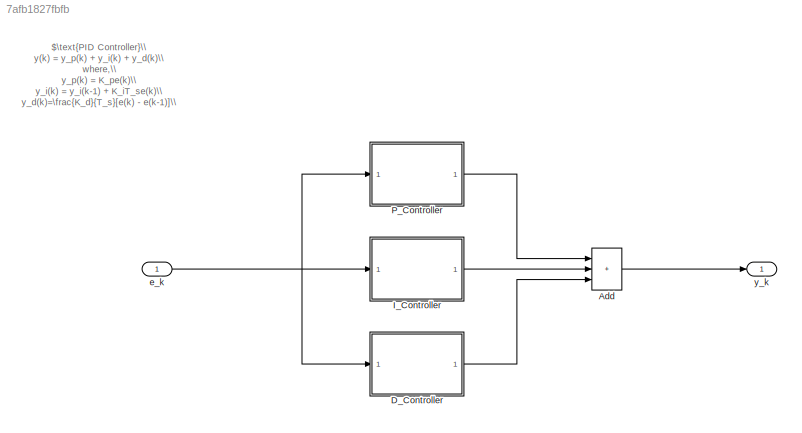
MODEL slx_7afb1827fbfb
KIND model
CONFIG AbsTol = auto
CONFIG EnableMultiTasking = off
CONFIG FixedStep = Ts
CONFIG MaxStep = auto
CONFIG MinStep = auto
CONFIG PostLoadFcn = %load('Parameters.mat')
CONFIG PreLoadFcn = %load('Parameters.mat')
CONFIG RelTol = 1e-3
CONFIG SampleTimeConstraint = Unconstrained
CONFIG SolverName = FixedStepDiscrete
CONFIG StartTime = 0.0
CONFIG StopTime = 10.0
BLOCK [Sum] Add
  IconShape = rectangular
  Inputs = +++
  Ports = [3, 1]
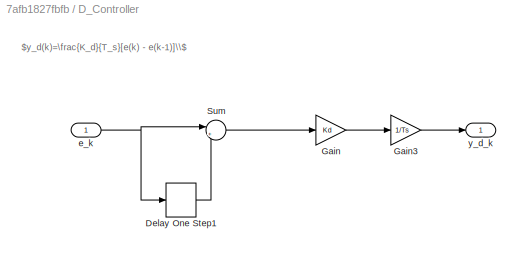
BLOCK [SubSystem] D_Controller
  Ports = [1, 1]
  RequestExecContextInheritance = off
BLOCK [Delay] D_Controller/Delay One Step1
  DelayLength = 1
  InputPortMap = u0
  Ports = [1, 1]
BLOCK [Gain] D_Controller/Gain
  Gain = Kd
BLOCK [Gain] D_Controller/Gain3
  Gain = 1/Ts
BLOCK [Sum] D_Controller/Sum
  Inputs = |+-
  Ports = [2, 1]
BLOCK [Inport] D_Controller/e_k
BLOCK [Outport] D_Controller/y_d_k
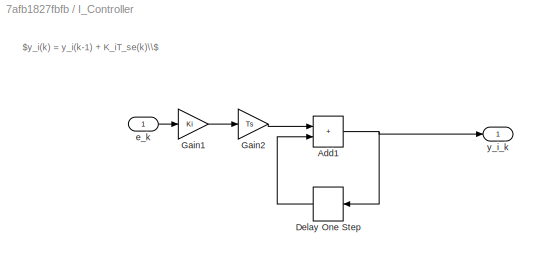
BLOCK [SubSystem] I_Controller
  Ports = [1, 1]
  RequestExecContextInheritance = off
BLOCK [Sum] I_Controller/Add1
  IconShape = rectangular
  Ports = [2, 1]
BLOCK [Delay] I_Controller/Delay One Step
  DelayLength = 1
  InputPortMap = u0
  NameLocation = top
  Ports = [1, 1]
BLOCK [Gain] I_Controller/Gain1
  Gain = Ki
BLOCK [Gain] I_Controller/Gain2
  Gain = Ts
BLOCK [Inport] I_Controller/e_k
BLOCK [Outport] I_Controller/y_i_k 
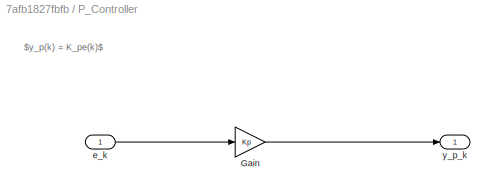
BLOCK [SubSystem] P_Controller
  Ports = [1, 1]
  RequestExecContextInheritance = off
BLOCK [Gain] P_Controller/Gain
  Gain = Kp
BLOCK [Inport] P_Controller/e_k
BLOCK [Outport] P_Controller/y_p_k
BLOCK [Inport] e_k
  OutDataTypeStr = double
  PortDimensions = 1
  SampleTime = Ts
  SamplingMode = Sample based
  SignalType = real
BLOCK [Outport] y_k
  OutDataTypeStr = double
  PortDimensions = 1
  SampleTime = Ts
  SamplingMode = Sample based
  SignalType = real
ANNOTATION (root): $\text{PID Controller}\\ y(k) = y_p(k) + y_i(k) + y_d(k)\\ where,\\ y_p(k) = K_pe(k)\\ y_i(k) = y_i(k-1) + K_iT_se(k)\\ y_d(k)=\frac{K_d}{T_s}[e(k) - e(k-1)]\\ \qquad T_s = 0.01$
ANNOTATION D_Controller: $y_d(k)=\frac{K_d}{T_s}[e(k) - e(k-1)]\\$
ANNOTATION I_Controller: $y_i(k) = y_i(k-1) + K_iT_se(k)\\$
ANNOTATION P_Controller: $y_p(k) = K_pe(k)$
LINE Add:1 -> y_k:1
LINE D_Controller/Delay One Step1:1 -> D_Controller/Sum:2
LINE D_Controller/Gain3:1 -> D_Controller/y_d_k:1
LINE D_Controller/Gain:1 -> D_Controller/Gain3:1
LINE D_Controller/Sum:1 -> D_Controller/Gain:1
NET D_Controller/e_k:1 -> D_Controller/Delay One Step1:1, D_Controller/Sum:1
LINE D_Controller:1 -> Add:3
NET I_Controller/Add1:1 -> I_Controller/Delay One Step:1, I_Controller/y_i_k :1
LINE I_Controller/Delay One Step:1 -> I_Controller/Add1:2
LINE I_Controller/Gain1:1 -> I_Controller/Gain2:1
LINE I_Controller/Gain2:1 -> I_Controller/Add1:1
LINE I_Controller/e_k:1 -> I_Controller/Gain1:1
LINE I_Controller:1 -> Add:2
LINE P_Controller/Gain:1 -> P_Controller/y_p_k:1
LINE P_Controller/e_k:1 -> P_Controller/Gain:1
LINE P_Controller:1 -> Add:1
NET e_k:1 -> D_Controller:1, I_Controller:1, P_Controller:1
note: NET lines group one-source signal fan-out (src -> all destinations, sorted); 1:1 wires keep LINE
